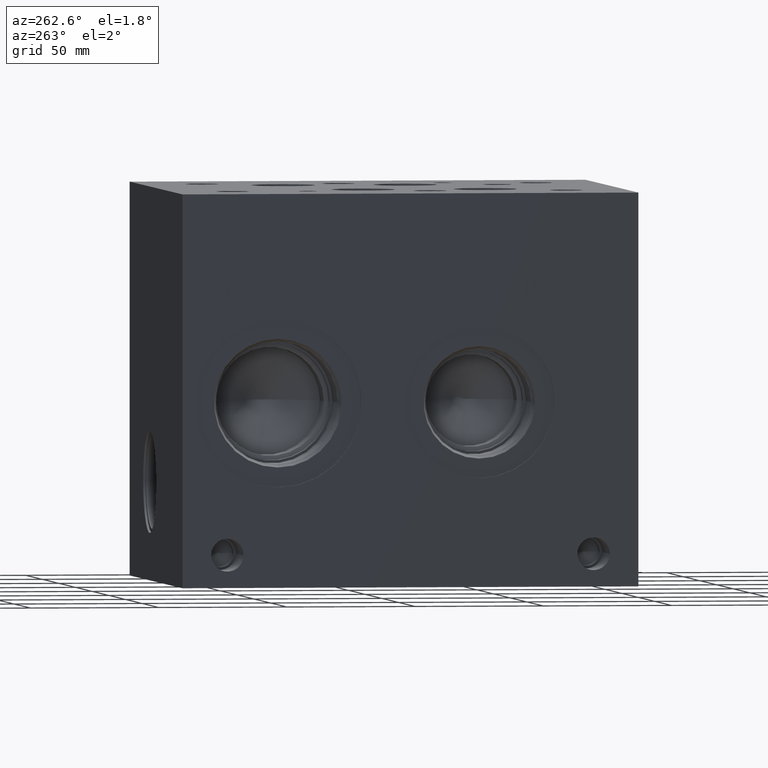
[diagram: clean part render]
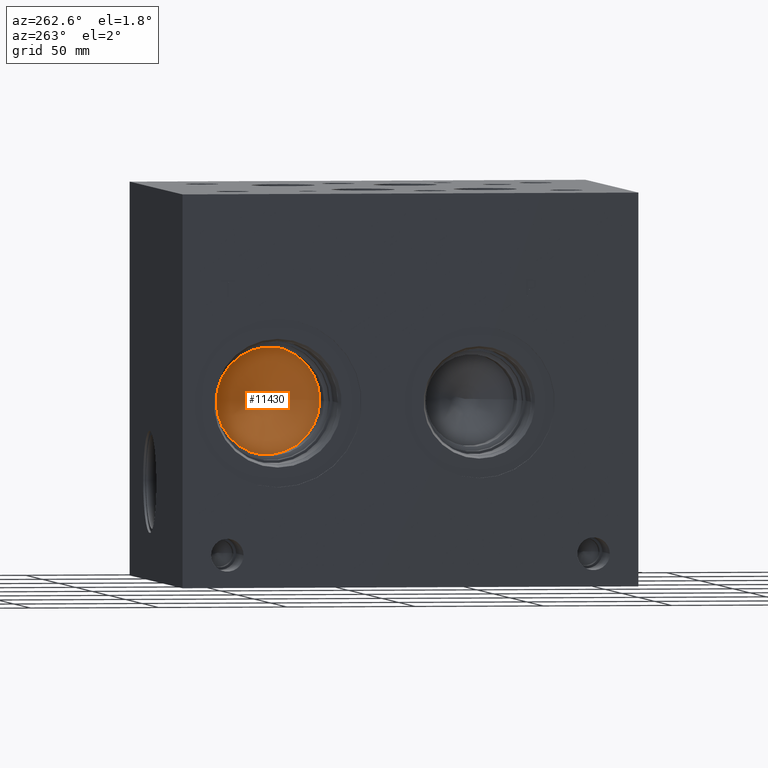
[diagram: same view with one face highlighted and labeled with its STEP entity id]
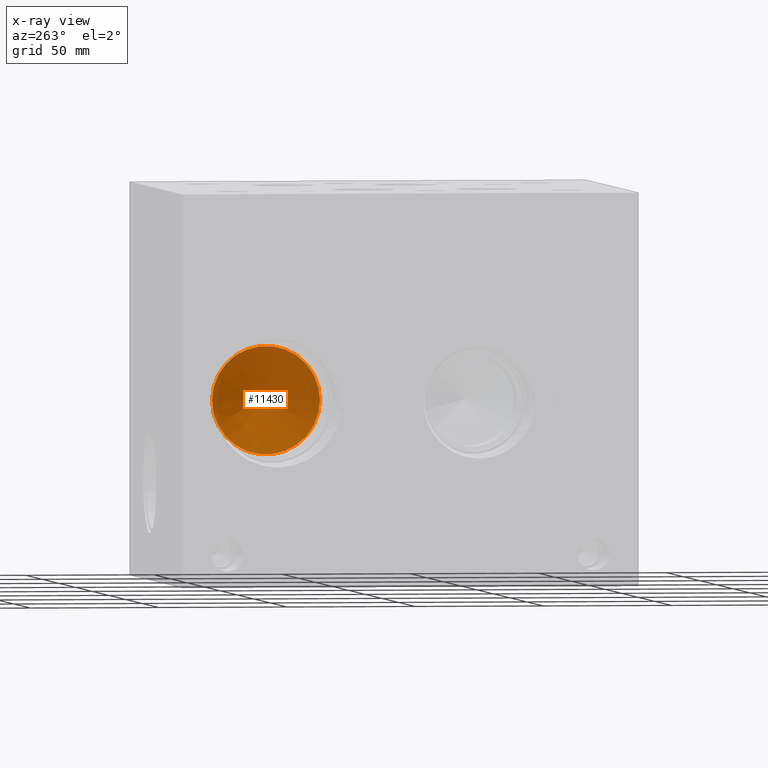
[diagram: x-ray of the same camera — body ghosted, the highlighted face saturated]
A machine part, auxiliary view. The second image highlights one B-rep face of the part: STEP entity #11430.
The next image is the same camera in x-ray: the body ghosted, the highlighted face saturated — about 3% of this face is hidden behind the body in this view.
In plain terms, the highlighted conical surface has half-angle 60 deg.
Its self-contained STEP definition (entity closure, byte-faithful):
#33=CONICAL_SURFACE('',#12012,10.5156,1.0471975511966);
#247=CIRCLE('',#12013,21.0312);
#248=CIRCLE('',#12014,21.0312);
#1319=FACE_OUTER_BOUND('',#1979,.T.);
#1979=EDGE_LOOP('',(#9896,#9897,#9898,#9899));
#3076=LINE('',#19394,#4127);
#4127=VECTOR('',#14184,10.5156);
#5422=VERTEX_POINT('',#19390);
#5423=VERTEX_POINT('',#19391);
#5424=VERTEX_POINT('',#19393);
#6960=EDGE_CURVE('',#5422,#5423,#247,.T.);
#6961=EDGE_CURVE('',#5423,#5424,#3076,.T.);
#6962=EDGE_CURVE('',#5423,#5422,#248,.T.);
#9896=ORIENTED_EDGE('',*,*,#6960,.T.);
#9897=ORIENTED_EDGE('',*,*,#6961,.T.);
#9898=ORIENTED_EDGE('',*,*,#6961,.F.);
#9899=ORIENTED_EDGE('',*,*,#6962,.T.);
#11430=ADVANCED_FACE('',(#1319),#33,.F.);
#12012=AXIS2_PLACEMENT_3D('',#19389,#14180,#14181);
#12013=AXIS2_PLACEMENT_3D('',#19392,#14182,#14183);
#12014=AXIS2_PLACEMENT_3D('',#19395,#14185,#14186);
#14180=DIRECTION('center_axis',(-1.,0.,0.));
#14181=DIRECTION('ref_axis',(0.,1.,0.));
#14182=DIRECTION('center_axis',(-1.,0.,0.));
#14183=DIRECTION('ref_axis',(0.,1.,0.));
#14184=DIRECTION('',(0.5,0.866025403784439,-1.06057523872491E-16));
#14185=DIRECTION('center_axis',(-1.,0.,0.));
#14186=DIRECTION('ref_axis',(0.,1.,0.));
#19389=CARTESIAN_POINT('Origin',(42.7936644906904,140.4874,71.4248));
#19390=CARTESIAN_POINT('',(36.72248,161.5186,71.4248));
#19391=CARTESIAN_POINT('',(36.72248,119.4562,71.4248));
#19392=CARTESIAN_POINT('Origin',(36.72248,140.4874,71.4248));
#19393=CARTESIAN_POINT('',(48.8648489813809,140.4874,71.4248));
#19394=CARTESIAN_POINT('',(42.7936644906904,129.9718,71.4248));
#19395=CARTESIAN_POINT('Origin',(36.72248,140.4874,71.4248));